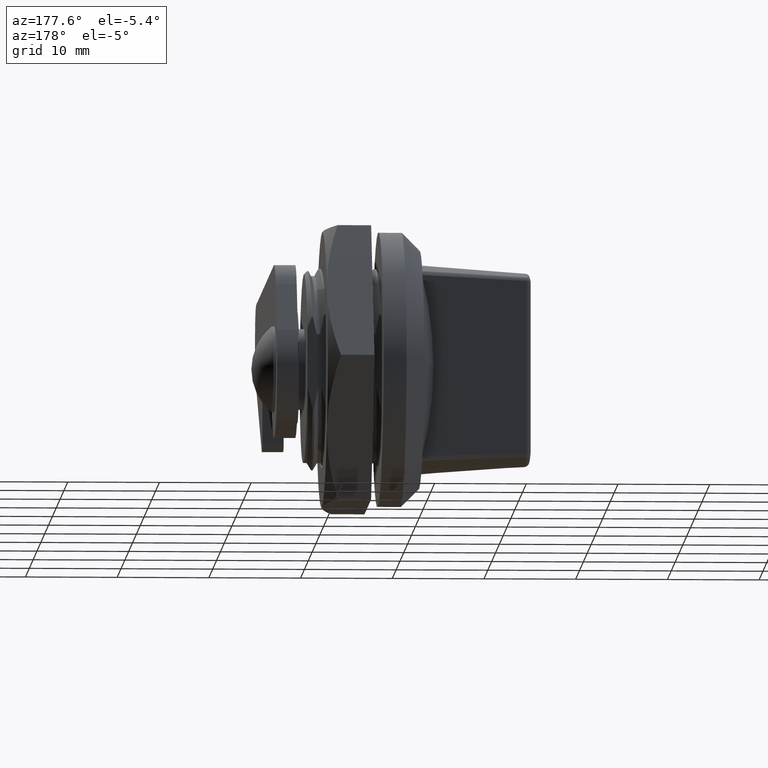
[diagram: clean part render]
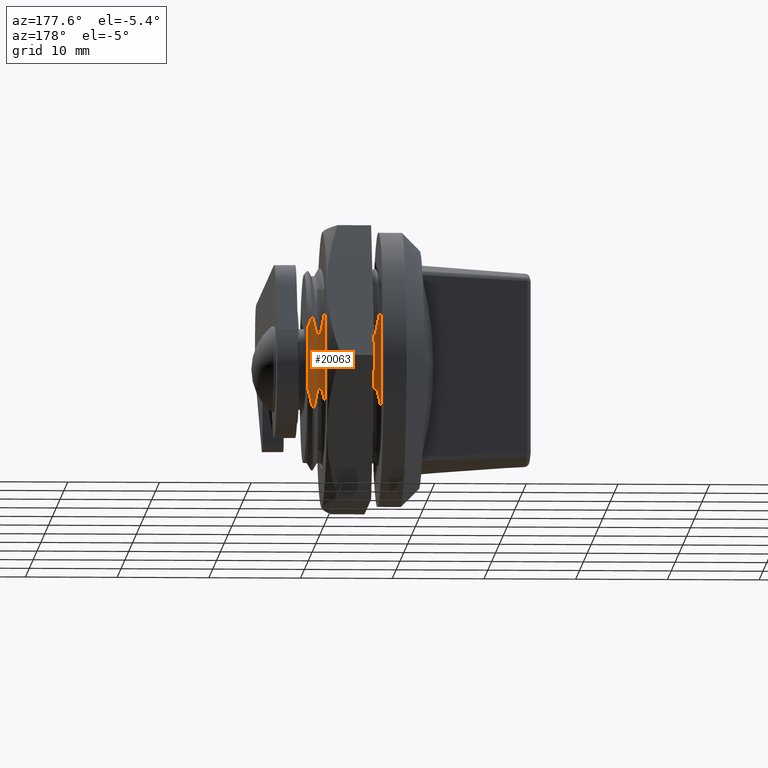
[diagram: same view with one face highlighted and labeled with its STEP entity id]
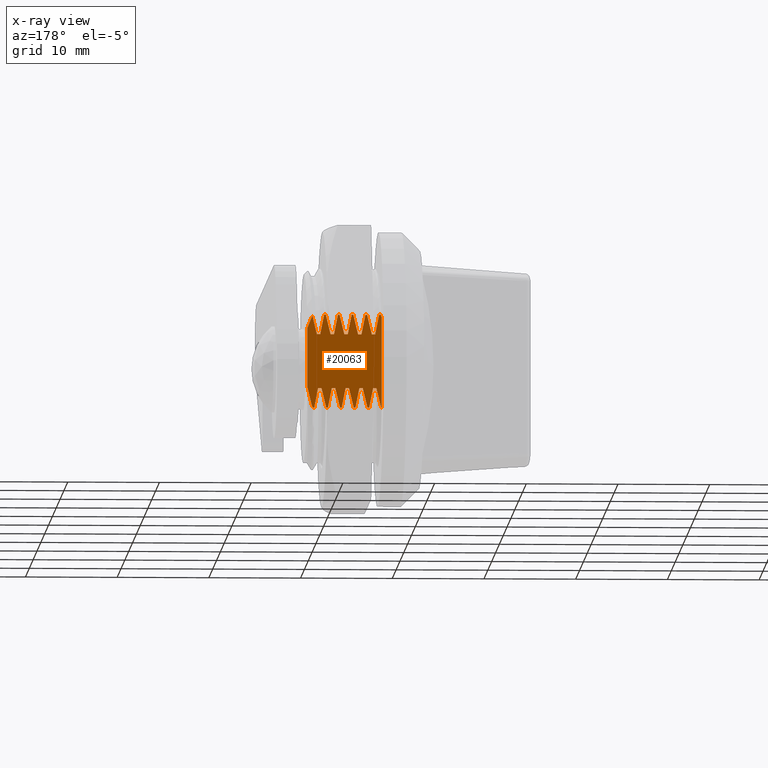
[diagram: x-ray of the same camera — body ghosted, the highlighted face saturated]
A machine part, auxiliary view. The second image highlights one B-rep face of the part: STEP entity #20063.
The next image is the same camera in x-ray: the body ghosted, the highlighted face saturated — about 0% of this face is hidden behind the body in this view.
In plain terms, the highlighted planar face has unit normal (0, 1, -0).
Its self-contained STEP definition (entity closure, byte-faithful):
#61 = EDGE_CURVE ( 'NONE', #17751, #25264, #22740, .T. ) ;
#84 = CARTESIAN_POINT ( 'NONE',  ( 7.747457611154870500, 9.750000000000000000, -4.388131041996834000 ) ) ;
#104 = EDGE_CURVE ( 'NONE', #27279, #17019, #11925, .T. ) ;
#142 = CARTESIAN_POINT ( 'NONE',  ( 1004.500000000000000, 9.749999999999888100, -5.092887196872950100 ) ) ;
#196 = B_SPLINE_CURVE_WITH_KNOTS ( 'NONE', 3,
 ( #27575, #12445, #16801, #3833 ),
 .UNSPECIFIED., .F., .F.,
 ( 4, 4 ),
 ( 1.374339532045098700E-015, 0.002199775161618605800 ),
 .UNSPECIFIED. ) ;
#243 = CARTESIAN_POINT ( 'NONE',  ( 12.59251420556091900, 9.750000000000007100, 3.598993143725120400 ) ) ;
#316 = ORIENTED_EDGE ( 'NONE', *, *, #8936, .F. ) ;
#340 = CARTESIAN_POINT ( 'NONE',  ( 9.247457611151459000, 9.750000000000000000, -4.388131041996415700 ) ) ;
#360 = EDGE_LOOP ( 'NONE', ( #11985, #9106, #17912, #11980, #19501, #3872, #20862, #6910, #1892, #23405, #22431, #23936, #3649, #22143, #4700, #5692, #4886, #25595, #2560, #25263, #11300, #7967, #27826, #26838, #5960, #13802, #4208, #316, #26705, #3518, #23555, #1164, #18157, #9923, #23167, #9886, #3871, #10373, #6713, #25176, #16117, #8779, #2201, #4956, #27903, #8607, #25937, #18700, #24171 ) ) ;
#437 = CARTESIAN_POINT ( 'NONE',  ( 9.935243690233729600, 9.750000000000000000, -2.955138575430904500 ) ) ;
#452 = VECTOR ( 'NONE', #14614, 1000.000000000000000 ) ;
#487 = EDGE_CURVE ( 'NONE', #13762, #21041, #20706, .T. ) ;
#562 = CARTESIAN_POINT ( 'NONE',  ( 7.071591603368130300, 9.750000000000000000, 2.955138575430920100 ) ) ;
#614 = CARTESIAN_POINT ( 'NONE',  ( 7.773776318950489800, 9.749999999999888100, 5.092887196872939400 ) ) ;
#639 = CARTESIAN_POINT ( 'NONE',  ( 1004.500000000000000, 9.749999999999888100, 5.092887196872939400 ) ) ;
#834 = VERTEX_POINT ( 'NONE', #20038 ) ;
#888 = LINE ( 'NONE', #3045, #11706 ) ;
#1023 = CARTESIAN_POINT ( 'NONE',  ( 9.273776318950540400, 9.749999999999888100, 5.092887196872939400 ) ) ;
#1164 = ORIENTED_EDGE ( 'NONE', *, *, #27853, .F. ) ;
#1195 = VERTEX_POINT ( 'NONE', #20387 ) ;
#1245 = LINE ( 'NONE', #7952, #12065 ) ;
#1343 = CARTESIAN_POINT ( 'NONE',  ( 1004.500000000000000, 9.749999999999888100, 5.092887196872939400 ) ) ;
#1422 = VERTEX_POINT ( 'NONE', #16320 ) ;
#1651 = CARTESIAN_POINT ( 'NONE',  ( 12.11880853623222100, 9.750000000000000000, -4.830924101067680000 ) ) ;
#1674 = VERTEX_POINT ( 'NONE', #16606 ) ;
#1788 = CARTESIAN_POINT ( 'NONE',  ( 11.57159160336812000, 9.750000000000000000, 2.955138575430949800 ) ) ;
#1840 = CARTESIAN_POINT ( 'NONE',  ( 11.57159160336812000, 9.750000000000000000, 2.955138575430949800 ) ) ;
#1892 = ORIENTED_EDGE ( 'NONE', *, *, #24857, .F. ) ;
#1941 = CARTESIAN_POINT ( 'NONE',  ( 3.065778809314075200, 9.750000000000000000, -2.955138575430900100 ) ) ;
#1942 = CARTESIAN_POINT ( 'NONE',  ( 4.544886787536820600, 9.749999999999870300, -5.092887196873009600 ) ) ;
#1992 = VERTEX_POINT ( 'NONE', #13755 ) ;
#2009 = CARTESIAN_POINT ( 'NONE',  ( 7.773776318950489800, 9.749999999999888100, 5.092887196872939400 ) ) ;
#2201 = ORIENTED_EDGE ( 'NONE', *, *, #104, .F. ) ;
#2287 = VECTOR ( 'NONE', #9181, 1000.000000000000000 ) ;
#2324 = EDGE_CURVE ( 'NONE', #19220, #14966, #3980, .T. ) ;
#2560 = ORIENTED_EDGE ( 'NONE', *, *, #10071, .F. ) ;
#2617 = B_SPLINE_CURVE_WITH_KNOTS ( 'NONE', 3,
 ( #13051, #84, #19565, #6610 ),
 .UNSPECIFIED., .F., .F.,
 ( 4, 4 ),
 ( 8.063759033315296500E-016, 0.002199775161621851100 ),
 .UNSPECIFIED. ) ;
#2629 = CARTESIAN_POINT ( 'NONE',  ( 11.85778129967785900, 9.749999999999859700, -5.092887196873020300 ) ) ;
#2664 = CARTESIAN_POINT ( 'NONE',  ( 5.092307622353009900, 9.750000000000000000, 3.674419402859443000 ) ) ;
#2693 = CARTESIAN_POINT ( 'NONE',  ( 11.43524369023371900, 9.750000000000000000, -2.955138575430849900 ) ) ;
#2818 = VECTOR ( 'NONE', #4579, 1000.000000000000000 ) ;
#2849 = EDGE_CURVE ( 'NONE', #26038, #7321, #16988, .T. ) ;
#2930 = VECTOR ( 'NONE', #26419, 1000.000000000000000 ) ;
#3019 = CARTESIAN_POINT ( 'NONE',  ( 5.435243690233729600, 9.750000000000000000, -2.955138575430839700 ) ) ;
#3044 = CARTESIAN_POINT ( 'NONE',  ( 10.77377631895050000, 9.749999999999888100, 5.092887196872939400 ) ) ;
#3045 = CARTESIAN_POINT ( 'NONE',  ( 3.065778809314075200, 9.750000000000000000, 2.955138575430900100 ) ) ;
#3091 = B_SPLINE_CURVE_WITH_KNOTS ( 'NONE', 3,
 ( #4720, #17670, #11242, #26383 ),
 .UNSPECIFIED., .F., .F.,
 ( 4, 4 ),
 ( 5.454457236286268500E-016, 0.002199775161620278500 ),
 .UNSPECIFIED. ) ;
#3113 = EDGE_CURVE ( 'NONE', #11786, #23279, #12975, .T. ) ;
#3518 = ORIENTED_EDGE ( 'NONE', *, *, #25102, .F. ) ;
#3649 = ORIENTED_EDGE ( 'NONE', *, *, #7711, .F. ) ;
#3833 = CARTESIAN_POINT ( 'NONE',  ( 5.571591603368130300, 9.750000000000000000, 2.955138575430959600 ) ) ;
#3871 = ORIENTED_EDGE ( 'NONE', *, *, #61, .F. ) ;
#3872 = ORIENTED_EDGE ( 'NONE', *, *, #22933, .T. ) ;
#3980 = B_SPLINE_CURVE_WITH_KNOTS ( 'NONE', 3,
 ( #25538, #21187, #12581, #27721 ),
 .UNSPECIFIED., .F., .F.,
 ( 4, 4 ),
 ( 2.763496712971269500E-016, 0.002179643169391172700 ),
 .UNSPECIFIED. ) ;
#4088 = DIRECTION ( 'NONE',  ( 1.000000000000000000, -0.0000000000000000000, -0.0000000000000000000 ) ) ;
#4208 = ORIENTED_EDGE ( 'NONE', *, *, #21597, .T. ) ;
#4315 = B_SPLINE_CURVE_WITH_KNOTS ( 'NONE', 3,
 ( #26150, #243, #19710, #6764 ),
 .UNSPECIFIED., .F., .F.,
 ( 4, 4 ),
 ( 0.0006088541726965527300, 0.0007387327861156577900 ),
 .UNSPECIFIED. ) ;
#4367 = CARTESIAN_POINT ( 'NONE',  ( 12.57714551780390100, 9.750000000000000000, 3.684208945773095300 ) ) ;
#4382 = CARTESIAN_POINT ( 'NONE',  ( 10.35778129967785900, 9.749999999999888100, -5.092887196873049600 ) ) ;
#4439 = EDGE_CURVE ( 'NONE', #15771, #17751, #4855, .T. ) ;
#4445 = LINE ( 'NONE', #24157, #21008 ) ;
#4476 = CARTESIAN_POINT ( 'NONE',  ( 9.044886787536821500, 9.749999999999888100, -5.092887196873049600 ) ) ;
#4543 = VERTEX_POINT ( 'NONE', #4943 ) ;
#4547 = CARTESIAN_POINT ( 'NONE',  ( 1004.500000000000000, 9.749999999999888100, -5.092887196872950100 ) ) ;
#4578 = CARTESIAN_POINT ( 'NONE',  ( 10.54488678753682000, 9.749999999999859700, -5.092887196873020300 ) ) ;
#4579 = DIRECTION ( 'NONE',  ( -1.000000000000000000, 0.0000000000000000000, 0.0000000000000000000 ) ) ;
#4677 = CARTESIAN_POINT ( 'NONE',  ( 9.422852127396721400, 9.750000000000000000, -3.675518082631396700 ) ) ;
#4700 = ORIENTED_EDGE ( 'NONE', *, *, #25473, .F. ) ;
#4720 = CARTESIAN_POINT ( 'NONE',  ( 9.086670831091550900, 9.750000000000000000, 5.092887196872919900 ) ) ;
#4742 = EDGE_CURVE ( 'NONE', #20503, #834, #27156, .T. ) ;
#4770 = CARTESIAN_POINT ( 'NONE',  ( 10.03924999627532900, 9.750000000000000000, -3.674419402859540700 ) ) ;
#4820 = EDGE_CURVE ( 'NONE', #25000, #12672, #9231, .T. ) ;
#4841 = LINE ( 'NONE', #1941, #21403 ) ;
#4855 = B_SPLINE_CURVE_WITH_KNOTS ( 'NONE', 3,
 ( #24341, #9210, #13562, #614 ),
 .UNSPECIFIED., .F., .F.,
 ( 4, 4 ),
 ( 7.996680103938911300E-018, 0.002179643169391180500 ),
 .UNSPECIFIED. ) ;
#4865 = CARTESIAN_POINT ( 'NONE',  ( 7.544886787536829500, 9.749999999999859700, -5.092887196873030000 ) ) ;
#4886 = ORIENTED_EDGE ( 'NONE', *, *, #18934, .F. ) ;
#4943 = CARTESIAN_POINT ( 'NONE',  ( 9.559966015260229700, 9.750000000000799400, -2.955138575428334600 ) ) ;
#4951 = VERTEX_POINT ( 'NONE', #13603 ) ;
#4956 = ORIENTED_EDGE ( 'NONE', *, *, #9703, .F. ) ;
#5004 = CARTESIAN_POINT ( 'NONE',  ( 9.696313928394570100, 9.750000000000000000, 2.955138575430884500 ) ) ;
#5135 = CARTESIAN_POINT ( 'NONE',  ( 10.58667083109154000, 9.750000000000000000, 5.092887196872850600 ) ) ;
#5160 = B_SPLINE_CURVE_WITH_KNOTS ( 'NONE', 3,
 ( #25512, #14642, #14739, #1788 ),
 .UNSPECIFIED., .F., .F.,
 ( 4, 4 ),
 ( 0.0001211446762091637300, 0.002199775161618641400 ),
 .UNSPECIFIED. ) ;
#5201 = DIRECTION ( 'NONE',  ( -1.000000000000000000, 0.0000000000000000000, 0.0000000000000000000 ) ) ;
#5259 = VERTEX_POINT ( 'NONE', #21205 ) ;
#5265 = CARTESIAN_POINT ( 'NONE',  ( 9.696313928394570100, 9.750000000000000000, 2.955138575430884500 ) ) ;
#5341 = CARTESIAN_POINT ( 'NONE',  ( 1004.500000000000000, 9.749999999999888100, 5.092887196872939400 ) ) ;
#5356 = CARTESIAN_POINT ( 'NONE',  ( 3.065778809314075200, 9.750000000000000000, 2.955138575430900100 ) ) ;
#5497 = CARTESIAN_POINT ( 'NONE',  ( 3.065778809314075200, 9.750000000000000000, -2.955138575430900100 ) ) ;
#5538 = VERTEX_POINT ( 'NONE', #23565 ) ;
#5539 = EDGE_CURVE ( 'NONE', #20503, #24346, #25837, .T. ) ;
#5587 = CARTESIAN_POINT ( 'NONE',  ( 5.435243690233729600, 9.750000000000000000, -2.955138575430839700 ) ) ;
#5692 = ORIENTED_EDGE ( 'NONE', *, *, #7870, .F. ) ;
#5846 = B_SPLINE_CURVE_WITH_KNOTS ( 'NONE', 3,
 ( #18637, #7853, #22966, #10034 ),
 .UNSPECIFIED., .F., .F.,
 ( 4, 4 ),
 ( 1.552579691516046800E-015, 0.002199775161621179700 ),
 .UNSPECIFIED. ) ;
#5848 = CARTESIAN_POINT ( 'NONE',  ( 8.196313928394570100, 9.750000000000000000, 2.955138575430984900 ) ) ;
#5867 = VECTOR ( 'NONE', #13587, 1000.000000000000000 ) ;
#5929 = VERTEX_POINT ( 'NONE', #13585 ) ;
#5960 = ORIENTED_EDGE ( 'NONE', *, *, #5539, .F. ) ;
#5977 = CARTESIAN_POINT ( 'NONE',  ( 4.773776318950480000, 9.749999999999888100, 5.092887196872939400 ) ) ;
#6071 = CARTESIAN_POINT ( 'NONE',  ( 12.55996601526021900, 9.750000000000749600, -2.955138575428444700 ) ) ;
#6164 = VECTOR ( 'NONE', #16476, 1000.000000000000000 ) ;
#6215 = CARTESIAN_POINT ( 'NONE',  ( 3.065778809314075200, 9.750000000000000000, -2.955138575430900100 ) ) ;
#6369 = CARTESIAN_POINT ( 'NONE',  ( 5.857781299677869300, 9.749999999999747800, -5.092887196873250300 ) ) ;
#6450 = CARTESIAN_POINT ( 'NONE',  ( 12.24477119753892600, 9.750000000000001800, 4.555540758050388400 ) ) ;
#6565 = CARTESIAN_POINT ( 'NONE',  ( 12.11880853623222100, 9.750000000000000000, -4.830924101067680000 ) ) ;
#6570 = CARTESIAN_POINT ( 'NONE',  ( 4.586670831091540300, 9.750000000000000000, 5.092887196872959900 ) ) ;
#6571 = CARTESIAN_POINT ( 'NONE',  ( 8.435243690233740200, 9.750000000000000000, -2.955138575430814800 ) ) ;
#6610 = CARTESIAN_POINT ( 'NONE',  ( 8.059966015260240400, 9.750000000000779800, -2.955138575428244900 ) ) ;
#6649 = EDGE_CURVE ( 'NONE', #1422, #24229, #9206, .T. ) ;
#6666 = CARTESIAN_POINT ( 'NONE',  ( 11.99999999995382000, 9.750000000000000000, -5.092887196873070000 ) ) ;
#6692 = LINE ( 'NONE', #6215, #23942 ) ;
#6713 = ORIENTED_EDGE ( 'NONE', *, *, #16948, .F. ) ;
#6717 = CARTESIAN_POINT ( 'NONE',  ( 10.54488678753682000, 9.749999999999859700, -5.092887196873020300 ) ) ;
#6764 = CARTESIAN_POINT ( 'NONE',  ( 12.57714551780390100, 9.750000000000000000, 3.684208945773095300 ) ) ;
#6864 = CARTESIAN_POINT ( 'NONE',  ( 11.43524369023371900, 9.750000000000000000, -2.955138575430849900 ) ) ;
#6910 = ORIENTED_EDGE ( 'NONE', *, *, #10912, .F. ) ;
#6914 = VECTOR ( 'NONE', #14412, 1000.000000000000000 ) ;
#6965 = VERTEX_POINT ( 'NONE', #5977 ) ;
#6989 = CARTESIAN_POINT ( 'NONE',  ( 5.196313928394560300, 9.750000000000000000, 2.955138575430724700 ) ) ;
#7038 = CARTESIAN_POINT ( 'NONE',  ( 6.696313928394570100, 9.750000000000000000, 2.955138575430920100 ) ) ;
#7126 = CARTESIAN_POINT ( 'NONE',  ( 4.499999999999884500, 9.750000000000000000, -11.39901311517800100 ) ) ;
#7321 = VERTEX_POINT ( 'NONE', #6369 ) ;
#7328 = LINE ( 'NONE', #15709, #2287 ) ;
#7330 = VERTEX_POINT ( 'NONE', #21501 ) ;
#7507 = AXIS2_PLACEMENT_3D ( 'NONE', #16590, #12324, #27452 ) ;
#7539 = EDGE_CURVE ( 'NONE', #1674, #1992, #21671, .T. ) ;
#7570 = LINE ( 'NONE', #12231, #6914 ) ;
#7657 = VERTEX_POINT ( 'NONE', #4578 ) ;
#7664 = VECTOR ( 'NONE', #18463, 1000.000000000000000 ) ;
#7711 = EDGE_CURVE ( 'NONE', #22895, #4543, #16631, .T. ) ;
#7824 = EDGE_CURVE ( 'NONE', #7657, #20798, #4445, .T. ) ;
#7853 = CARTESIAN_POINT ( 'NONE',  ( 7.384100007481865900, 9.750000000000000000, 4.388131041997386500 ) ) ;
#7870 = EDGE_CURVE ( 'NONE', #12072, #4951, #26119, .T. ) ;
#7952 = CARTESIAN_POINT ( 'NONE',  ( 1004.500000000000000, 9.749999999999888100, -5.092887196872950100 ) ) ;
#7967 = ORIENTED_EDGE ( 'NONE', *, *, #18009, .T. ) ;
#8111 = B_SPLINE_CURVE_WITH_KNOTS ( 'NONE', 3,
 ( #6717, #17486, #24018, #11067 ),
 .UNSPECIFIED., .F., .F.,
 ( 4, 4 ),
 ( 1.086248948939843800E-015, 0.002199775161623259200 ),
 .UNSPECIFIED. ) ;
#8137 = DIRECTION ( 'NONE',  ( -1.000000000000000000, 0.0000000000000000000, 0.0000000000000000000 ) ) ;
#8339 = CARTESIAN_POINT ( 'NONE',  ( 4.500000000007279500, 9.750000000000000000, 4.784718670937349900 ) ) ;
#8448 = CARTESIAN_POINT ( 'NONE',  ( 4.922852127396732100, 9.750000000000000000, -3.675518082631341200 ) ) ;
#8556 = LINE ( 'NONE', #142, #2818 ) ;
#8607 = ORIENTED_EDGE ( 'NONE', *, *, #2324, .F. ) ;
#8758 = CARTESIAN_POINT ( 'NONE',  ( 8.683393538872472600, 9.750000000000000000, -4.387379690872654300 ) ) ;
#8779 = ORIENTED_EDGE ( 'NONE', *, *, #18563, .F. ) ;
#8868 = VECTOR ( 'NONE', #13557, 1000.000000000000000 ) ;
#8936 = EDGE_CURVE ( 'NONE', #21101, #1195, #17518, .T. ) ;
#9106 = ORIENTED_EDGE ( 'NONE', *, *, #20018, .T. ) ;
#9164 = CARTESIAN_POINT ( 'NONE',  ( 4.948164079755763100, 9.750000000000000000, 4.387379690873260100 ) ) ;
#9178 = EDGE_CURVE ( 'NONE', #17372, #5929, #27551, .T. ) ;
#9181 = DIRECTION ( 'NONE',  ( -1.000000000000000000, 0.0000000000000000000, 0.0000000000000000000 ) ) ;
#9206 = LINE ( 'NONE', #16396, #21363 ) ;
#9210 = CARTESIAN_POINT ( 'NONE',  ( 8.092307622352995700, 9.750000000000000000, 3.674419402859526500 ) ) ;
#9231 = LINE ( 'NONE', #17767, #15667 ) ;
#9445 = CARTESIAN_POINT ( 'NONE',  ( 5.539249996275332300, 9.750000000000000000, -3.674419402859585600 ) ) ;
#9466 = VERTEX_POINT ( 'NONE', #2693 ) ;
#9497 = CARTESIAN_POINT ( 'NONE',  ( 8.571591603368141000, 9.750000000000000000, 2.955138575430984900 ) ) ;
#9642 = CARTESIAN_POINT ( 'NONE',  ( 7.183393538872596000, 9.750000000000000000, -4.387379690873423500 ) ) ;
#9703 = EDGE_CURVE ( 'NONE', #14530, #27279, #10394, .T. ) ;
#9757 = VERTEX_POINT ( 'NONE', #9497 ) ;
#9886 = ORIENTED_EDGE ( 'NONE', *, *, #15639, .F. ) ;
#9923 = ORIENTED_EDGE ( 'NONE', *, *, #15802, .F. ) ;
#9959 = LINE ( 'NONE', #24485, #20772 ) ;
#10034 = CARTESIAN_POINT ( 'NONE',  ( 7.071591603368130300, 9.750000000000000000, 2.955138575430920100 ) ) ;
#10071 = EDGE_CURVE ( 'NONE', #26725, #21041, #23366, .T. ) ;
#10147 = PLANE ( 'NONE',  #7507 ) ;
#10157 = CARTESIAN_POINT ( 'NONE',  ( 3.065778809314075200, 9.750000000000000000, 2.955138575430900100 ) ) ;
#10187 = CARTESIAN_POINT ( 'NONE',  ( 9.086670831091550900, 9.750000000000000000, 5.092887196872919900 ) ) ;
#10208 = CARTESIAN_POINT ( 'NONE',  ( 6.592307622353003700, 9.750000000000000000, 3.674419402859502100 ) ) ;
#10251 = VECTOR ( 'NONE', #22246, 1000.000000000000000 ) ;
#10373 = ORIENTED_EDGE ( 'NONE', *, *, #4439, .F. ) ;
#10394 = B_SPLINE_CURVE_WITH_KNOTS ( 'NONE', 3,
 ( #5135, #18098, #24632, #11668 ),
 .UNSPECIFIED., .F., .F.,
 ( 4, 4 ),
 ( 3.257448574254432800E-016, 0.002199775161619544300 ),
 .UNSPECIFIED. ) ;
#10574 = DIRECTION ( 'NONE',  ( 1.000000000000000000, -0.0000000000000000000, -0.0000000000000000000 ) ) ;
#10625 = CARTESIAN_POINT ( 'NONE',  ( 4.747457611147774900, 9.750000000000000000, -4.388131041996560500 ) ) ;
#10912 = EDGE_CURVE ( 'NONE', #21871, #9466, #6692, .T. ) ;
#10952 = LINE ( 'NONE', #7126, #10251 ) ;
#11067 = CARTESIAN_POINT ( 'NONE',  ( 11.05996601526021900, 9.750000000000730100, -2.955138575428514900 ) ) ;
#11157 = CARTESIAN_POINT ( 'NONE',  ( 12.55996601526021900, 9.750000000000749600, -2.955138575428444700 ) ) ;
#11242 = CARTESIAN_POINT ( 'NONE',  ( 8.708705491231443200, 9.750000000000000000, 3.675518082630491200 ) ) ;
#11300 = ORIENTED_EDGE ( 'NONE', *, *, #19492, .F. ) ;
#11305 = CARTESIAN_POINT ( 'NONE',  ( 10.18339353887263400, 9.750000000000000000, -4.387379690873526500 ) ) ;
#11424 = B_SPLINE_CURVE_WITH_KNOTS ( 'NONE', 3,
 ( #6864, #19820, #15569, #2629 ),
 .UNSPECIFIED., .F., .F.,
 ( 4, 4 ),
 ( 1.574231686337168700E-016, 0.002179643169391252100 ),
 .UNSPECIFIED. ) ;
#11611 = CARTESIAN_POINT ( 'NONE',  ( 5.683393538872636900, 9.750000000000000000, -4.387379690873483000 ) ) ;
#11642 = LINE ( 'NONE', #639, #5867 ) ;
#11668 = CARTESIAN_POINT ( 'NONE',  ( 10.07159160336812100, 9.750000000000000000, 2.955138575430884500 ) ) ;
#11678 = CARTESIAN_POINT ( 'NONE',  ( 6.247457611157967600, 9.750000000000000000, -4.388131041998274600 ) ) ;
#11706 = VECTOR ( 'NONE', #5201, 1000.000000000000000 ) ;
#11733 = CARTESIAN_POINT ( 'NONE',  ( 10.07159160336812100, 9.750000000000000000, 2.955138575430884500 ) ) ;
#11786 = VERTEX_POINT ( 'NONE', #562 ) ;
#11925 = LINE ( 'NONE', #14523, #452 ) ;
#11980 = ORIENTED_EDGE ( 'NONE', *, *, #20226, .F. ) ;
#11985 = ORIENTED_EDGE ( 'NONE', *, *, #22902, .F. ) ;
#12065 = VECTOR ( 'NONE', #8137, 1000.000000000000000 ) ;
#12072 = VERTEX_POINT ( 'NONE', #13961 ) ;
#12207 = EDGE_CURVE ( 'NONE', #6965, #21101, #17832, .T. ) ;
#12231 = CARTESIAN_POINT ( 'NONE',  ( 12.59999999999193900, 9.750000000000000000, -11.39901311517800100 ) ) ;
#12287 = VERTEX_POINT ( 'NONE', #27293 ) ;
#12324 = DIRECTION ( 'NONE',  ( 0.0000000000000000000, 1.000000000000000000, -1.224646799147352000E-016 ) ) ;
#12335 = DIRECTION ( 'NONE',  ( -1.000000000000000000, 0.0000000000000000000, 0.0000000000000000000 ) ) ;
#12391 = CARTESIAN_POINT ( 'NONE',  ( 6.273776318950539600, 9.749999999999888100, 5.092887196872939400 ) ) ;
#12434 = EDGE_CURVE ( 'NONE', #14703, #7330, #22872, .T. ) ;
#12445 = CARTESIAN_POINT ( 'NONE',  ( 5.884100007471368500, 9.750000000000000000, 4.388131041998022400 ) ) ;
#12515 = CARTESIAN_POINT ( 'NONE',  ( 12.29025632290567000, 9.749999999999978700, -4.211692046623024800 ) ) ;
#12581 = CARTESIAN_POINT ( 'NONE',  ( 10.94816407975576700, 9.750000000000000000, 4.387379690873267200 ) ) ;
#12672 = VERTEX_POINT ( 'NONE', #25479 ) ;
#12801 = CARTESIAN_POINT ( 'NONE',  ( 5.059966015260229700, 9.750000000000740700, -2.955138575428504700 ) ) ;
#12975 = LINE ( 'NONE', #5356, #23794 ) ;
#12981 = CARTESIAN_POINT ( 'NONE',  ( 12.05345356274190000, 9.750000000000000000, 4.976382109736510600 ) ) ;
#13004 = CARTESIAN_POINT ( 'NONE',  ( 12.07986118796791800, 9.750000000000000000, -4.918649253560517700 ) ) ;
#13051 = CARTESIAN_POINT ( 'NONE',  ( 7.544886787536829500, 9.749999999999859700, -5.092887196873030000 ) ) ;
#13427 = DIRECTION ( 'NONE',  ( -1.000000000000000000, 0.0000000000000000000, 0.0000000000000000000 ) ) ;
#13557 = DIRECTION ( 'NONE',  ( 1.000000000000000000, -0.0000000000000000000, -0.0000000000000000000 ) ) ;
#13562 = CARTESIAN_POINT ( 'NONE',  ( 7.948164079755716900, 9.750000000000000000, 4.387379690873500800 ) ) ;
#13585 = CARTESIAN_POINT ( 'NONE',  ( 12.57714551780390100, 9.750000000000000000, 3.684208945773095300 ) ) ;
#13587 = DIRECTION ( 'NONE',  ( -1.000000000000000000, 0.0000000000000000000, 0.0000000000000000000 ) ) ;
#13603 = CARTESIAN_POINT ( 'NONE',  ( 8.435243690233740200, 9.750000000000000000, -2.955138575430814800 ) ) ;
#13689 = EDGE_CURVE ( 'NONE', #5259, #20798, #20101, .T. ) ;
#13752 = LINE ( 'NONE', #17897, #2930 ) ;
#13755 = CARTESIAN_POINT ( 'NONE',  ( 11.99999999995382000, 9.750000000000000000, -5.092887196873070000 ) ) ;
#13762 = VERTEX_POINT ( 'NONE', #4865 ) ;
#13802 = ORIENTED_EDGE ( 'NONE', *, *, #4742, .T. ) ;
#13834 = CARTESIAN_POINT ( 'NONE',  ( 6.559966015260170200, 9.750000000000000000, -2.955138575431004900 ) ) ;
#13961 = CARTESIAN_POINT ( 'NONE',  ( 8.059966015260240400, 9.750000000000779800, -2.955138575428244900 ) ) ;
#13978 = CARTESIAN_POINT ( 'NONE',  ( 9.448164079755942500, 9.750000000000000000, 4.387379690872339900 ) ) ;
#14230 = DIRECTION ( 'NONE',  ( -1.000000000000000000, 0.0000000000000000000, 0.0000000000000000000 ) ) ;
#14412 = DIRECTION ( 'NONE',  ( -0.0000000000000000000, -1.224646799147352000E-016, -1.000000000000000000 ) ) ;
#14523 = CARTESIAN_POINT ( 'NONE',  ( 3.065778809314075200, 9.750000000000000000, 2.955138575430900100 ) ) ;
#14530 = VERTEX_POINT ( 'NONE', #15994 ) ;
#14614 = DIRECTION ( 'NONE',  ( -1.000000000000000000, 0.0000000000000000000, 0.0000000000000000000 ) ) ;
#14642 = CARTESIAN_POINT ( 'NONE',  ( 11.86491104311030400, 9.750000000000071100, 4.309641615806769200 ) ) ;
#14703 = VERTEX_POINT ( 'NONE', #16364 ) ;
#14739 = CARTESIAN_POINT ( 'NONE',  ( 11.70115443881528200, 9.750000000000000000, 3.635845781719466300 ) ) ;
#14757 = CARTESIAN_POINT ( 'NONE',  ( 12.05345356274190000, 9.750000000000000000, 4.976382109736510600 ) ) ;
#14966 = VERTEX_POINT ( 'NONE', #3044 ) ;
#15341 = DIRECTION ( 'NONE',  ( -1.000000000000000000, 0.0000000000000000000, 0.0000000000000000000 ) ) ;
#15470 = CARTESIAN_POINT ( 'NONE',  ( 9.044886787536821500, 9.749999999999888100, -5.092887196873049600 ) ) ;
#15569 = CARTESIAN_POINT ( 'NONE',  ( 11.68339353887264100, 9.750000000000000000, -4.387379690873553200 ) ) ;
#15602 = B_SPLINE_CURVE_WITH_KNOTS ( 'NONE', 3,
 ( #18199, #11678, #22447, #20369 ),
 .UNSPECIFIED., .F., .F.,
 ( 4, 4 ),
 ( 1.893692232571931300E-015, 0.002199775161618300900 ),
 .UNSPECIFIED. ) ;
#15639 = EDGE_CURVE ( 'NONE', #25264, #11786, #5846, .T. ) ;
#15667 = VECTOR ( 'NONE', #26469, 1000.000000000000000 ) ;
#15709 = CARTESIAN_POINT ( 'NONE',  ( 3.065778809314075200, 9.750000000000000000, 2.955138575430900100 ) ) ;
#15771 = VERTEX_POINT ( 'NONE', #5848 ) ;
#15802 = EDGE_CURVE ( 'NONE', #23279, #12287, #23926, .T. ) ;
#15878 = EDGE_CURVE ( 'NONE', #22895, #5538, #1245, .T. ) ;
#15994 = CARTESIAN_POINT ( 'NONE',  ( 10.58667083109154000, 9.750000000000000000, 5.092887196872850600 ) ) ;
#16090 = B_SPLINE_CURVE_WITH_KNOTS ( 'NONE', 3,
 ( #6571, #21701, #8758, #23879 ),
 .UNSPECIFIED., .F., .F.,
 ( 4, 4 ),
 ( 1.916457301704689900E-016, 0.002179643169391262500 ),
 .UNSPECIFIED. ) ;
#16117 = ORIENTED_EDGE ( 'NONE', *, *, #6649, .F. ) ;
#16320 = CARTESIAN_POINT ( 'NONE',  ( 9.273776318950540400, 9.749999999999888100, 5.092887196872939400 ) ) ;
#16364 = CARTESIAN_POINT ( 'NONE',  ( 5.571591603368130300, 9.750000000000000000, 2.955138575430959600 ) ) ;
#16396 = CARTESIAN_POINT ( 'NONE',  ( 1004.500000000000000, 9.749999999999888100, 5.092887196872939400 ) ) ;
#16407 = VERTEX_POINT ( 'NONE', #21571 ) ;
#16476 = DIRECTION ( 'NONE',  ( -1.000000000000000000, 0.0000000000000000000, 0.0000000000000000000 ) ) ;
#16590 = CARTESIAN_POINT ( 'NONE',  ( 201004.5000000000000, 9.750000000000000000, -11.39901311517800100 ) ) ;
#16606 = CARTESIAN_POINT ( 'NONE',  ( 12.11880853623222100, 9.750000000000000000, -4.830924101067680000 ) ) ;
#16631 = B_SPLINE_CURVE_WITH_KNOTS ( 'NONE', 3,
 ( #15470, #340, #4677, #19809 ),
 .UNSPECIFIED., .F., .F.,
 ( 4, 4 ),
 ( 1.144950348284594800E-016, 0.002199775161622600500 ),
 .UNSPECIFIED. ) ;
#16801 = CARTESIAN_POINT ( 'NONE',  ( 5.708705491231267400, 9.750000000000000000, 3.675518082629580400 ) ) ;
#16850 = CARTESIAN_POINT ( 'NONE',  ( 1004.500000000000000, 9.749999999999888100, -5.092887196872950100 ) ) ;
#16856 = CARTESIAN_POINT ( 'NONE',  ( 4.586670831091540300, 9.750000000000000000, 5.092887196872959900 ) ) ;
#16948 = EDGE_CURVE ( 'NONE', #9757, #15771, #7328, .T. ) ;
#16988 = B_SPLINE_CURVE_WITH_KNOTS ( 'NONE', 3,
 ( #3019, #9445, #11611, #18135 ),
 .UNSPECIFIED., .F., .F.,
 ( 4, 4 ),
 ( 1.675473713649639600E-016, 0.002179643169391478500 ),
 .UNSPECIFIED. ) ;
#17019 = VERTEX_POINT ( 'NONE', #5004 ) ;
#17324 = CARTESIAN_POINT ( 'NONE',  ( 12.42104872358456500, 9.750000000000001800, 4.125816410287034900 ) ) ;
#17372 = VERTEX_POINT ( 'NONE', #14757 ) ;
#17486 = CARTESIAN_POINT ( 'NONE',  ( 10.74745761114788500, 9.750000000000000000, -4.388131041996558700 ) ) ;
#17518 = B_SPLINE_CURVE_WITH_KNOTS ( 'NONE', 3,
 ( #16856, #19112, #21286, #8339 ),
 .UNSPECIFIED., .F., .F.,
 ( 4, 4 ),
 ( 4.684684903261516600E-016, 0.0003201244653847361500 ),
 .UNSPECIFIED. ) ;
#17670 = CARTESIAN_POINT ( 'NONE',  ( 8.884100007478323800, 9.750000000000000000, 4.388131041997308300 ) ) ;
#17675 = CARTESIAN_POINT ( 'NONE',  ( 1004.500000000000000, 9.749999999999888100, -5.092887196872950100 ) ) ;
#17751 = VERTEX_POINT ( 'NONE', #2009 ) ;
#17767 = CARTESIAN_POINT ( 'NONE',  ( 3.065778809314075200, 9.750000000000000000, -2.955138575430900100 ) ) ;
#17832 = LINE ( 'NONE', #5341, #23564 ) ;
#17844 = CARTESIAN_POINT ( 'NONE',  ( 11.19631392839455900, 9.750000000000000000, 2.955138575430714900 ) ) ;
#17897 = CARTESIAN_POINT ( 'NONE',  ( 1004.500000000000000, 9.749999999999888100, 5.092887196872939400 ) ) ;
#17904 = CARTESIAN_POINT ( 'NONE',  ( 3.065778809314075200, 9.750000000000000000, -2.955138575430900100 ) ) ;
#17912 = ORIENTED_EDGE ( 'NONE', *, *, #4820, .F. ) ;
#18009 = EDGE_CURVE ( 'NONE', #24816, #7321, #25582, .T. ) ;
#18098 = CARTESIAN_POINT ( 'NONE',  ( 10.38410000747483900, 9.750000000000000000, 4.388131041997430000 ) ) ;
#18135 = CARTESIAN_POINT ( 'NONE',  ( 5.857781299677869300, 9.749999999999747800, -5.092887196873250300 ) ) ;
#18157 = ORIENTED_EDGE ( 'NONE', *, *, #27018, .F. ) ;
#18199 = CARTESIAN_POINT ( 'NONE',  ( 6.044886787536819700, 9.749999999999779700, -5.092887196873180100 ) ) ;
#18225 = EDGE_CURVE ( 'NONE', #24346, #26038, #9959, .T. ) ;
#18227 = CARTESIAN_POINT ( 'NONE',  ( 9.592307622352995700, 9.750000000000000000, 3.674419402859489200 ) ) ;
#18463 = DIRECTION ( 'NONE',  ( 1.000000000000000000, -0.0000000000000000000, -0.0000000000000000000 ) ) ;
#18481 = LINE ( 'NONE', #5497, #7664 ) ;
#18563 = EDGE_CURVE ( 'NONE', #17019, #1422, #27714, .T. ) ;
#18637 = CARTESIAN_POINT ( 'NONE',  ( 7.586670831091550000, 9.750000000000000000, 5.092887196872850600 ) ) ;
#18700 = ORIENTED_EDGE ( 'NONE', *, *, #24363, .F. ) ;
#18934 = EDGE_CURVE ( 'NONE', #13762, #12072, #2617, .T. ) ;
#19010 = DIRECTION ( 'NONE',  ( -1.000000000000000000, 0.0000000000000000000, 0.0000000000000000000 ) ) ;
#19038 = CARTESIAN_POINT ( 'NONE',  ( 12.43981797792918300, 9.750000000000000000, -3.586381590068409100 ) ) ;
#19112 = CARTESIAN_POINT ( 'NONE',  ( 4.557192835167887400, 9.750000000000000000, 4.990331465061892400 ) ) ;
#19150 = VECTOR ( 'NONE', #15341, 1000.000000000000000 ) ;
#19220 = VERTEX_POINT ( 'NONE', #17844 ) ;
#19307 = EDGE_CURVE ( 'NONE', #14966, #14530, #11642, .T. ) ;
#19434 = VERTEX_POINT ( 'NONE', #24455 ) ;
#19492 = EDGE_CURVE ( 'NONE', #24816, #21904, #15602, .T. ) ;
#19501 = ORIENTED_EDGE ( 'NONE', *, *, #7539, .T. ) ;
#19565 = CARTESIAN_POINT ( 'NONE',  ( 7.922852127396814700, 9.750000000000000000, -3.675518082630878900 ) ) ;
#19617 = CARTESIAN_POINT ( 'NONE',  ( 12.04024534779524600, 9.750000000000000000, -5.005962274104410500 ) ) ;
#19661 = CARTESIAN_POINT ( 'NONE',  ( 6.044886787536819700, 9.749999999999779700, -5.092887196873180100 ) ) ;
#19710 = CARTESIAN_POINT ( 'NONE',  ( 12.58489540601243400, 9.750000000000016000, 3.641612151236356200 ) ) ;
#19809 = CARTESIAN_POINT ( 'NONE',  ( 9.559966015260229700, 9.750000000000799400, -2.955138575428334600 ) ) ;
#19820 = CARTESIAN_POINT ( 'NONE',  ( 11.53924999627531600, 9.750000000000000000, -3.674419402859514100 ) ) ;
#20018 = EDGE_CURVE ( 'NONE', #20474, #12672, #7570, .T. ) ;
#20038 = CARTESIAN_POINT ( 'NONE',  ( 4.499999999999840100, 9.749999999999888100, -5.092887196872950100 ) ) ;
#20060 = VECTOR ( 'NONE', #19010, 1000.000000000000000 ) ;
#20063 = ADVANCED_FACE ( 'NONE', ( #23453 ), #10147, .T. ) ;
#20101 = B_SPLINE_CURVE_WITH_KNOTS ( 'NONE', 3,
 ( #437, #4770, #11305, #26436 ),
 .UNSPECIFIED., .F., .F.,
 ( 4, 4 ),
 ( 1.033808233555732500E-016, 0.002179643169391280700 ),
 .UNSPECIFIED. ) ;
#20226 = EDGE_CURVE ( 'NONE', #1674, #25000, #23536, .T. ) ;
#20369 = CARTESIAN_POINT ( 'NONE',  ( 6.559966015260170200, 9.750000000000000000, -2.955138575431004900 ) ) ;
#20387 = CARTESIAN_POINT ( 'NONE',  ( 4.500000000007279500, 9.750000000000000000, 4.784718670937349900 ) ) ;
#20418 = CARTESIAN_POINT ( 'NONE',  ( 7.039249996275353600, 9.750000000000000000, -3.674419402859613500 ) ) ;
#20419 = VERTEX_POINT ( 'NONE', #1840 ) ;
#20474 = VERTEX_POINT ( 'NONE', #21305 ) ;
#20503 = VERTEX_POINT ( 'NONE', #1942 ) ;
#20706 = LINE ( 'NONE', #16850, #20060 ) ;
#20772 = VECTOR ( 'NONE', #26669, 1000.000000000000000 ) ;
#20798 = VERTEX_POINT ( 'NONE', #4382 ) ;
#20862 = ORIENTED_EDGE ( 'NONE', *, *, #22126, .F. ) ;
#21008 = VECTOR ( 'NONE', #26342, 1000.000000000000000 ) ;
#21041 = VERTEX_POINT ( 'NONE', #21608 ) ;
#21060 = CARTESIAN_POINT ( 'NONE',  ( 5.059966015260229700, 9.750000000000740700, -2.955138575428504700 ) ) ;
#21101 = VERTEX_POINT ( 'NONE', #6570 ) ;
#21187 = CARTESIAN_POINT ( 'NONE',  ( 11.09230762235298900, 9.750000000000000000, 3.674419402859436400 ) ) ;
#21205 = CARTESIAN_POINT ( 'NONE',  ( 9.935243690233729600, 9.750000000000000000, -2.955138575430904500 ) ) ;
#21286 = CARTESIAN_POINT ( 'NONE',  ( 4.528291479721090700, 9.750000000000000000, 4.887608041362438100 ) ) ;
#21305 = CARTESIAN_POINT ( 'NONE',  ( 12.59999999999982000, 9.750000000000000000, 3.556351598496865200 ) ) ;
#21363 = VECTOR ( 'NONE', #14230, 1000.000000000000000 ) ;
#21390 = CARTESIAN_POINT ( 'NONE',  ( 4.544886787536820600, 9.749999999999870300, -5.092887196873009600 ) ) ;
#21393 = VECTOR ( 'NONE', #13427, 1000.000000000000000 ) ;
#21403 = VECTOR ( 'NONE', #4088, 1000.000000000000000 ) ;
#21501 = CARTESIAN_POINT ( 'NONE',  ( 5.196313928394560300, 9.750000000000000000, 2.955138575430724700 ) ) ;
#21571 = CARTESIAN_POINT ( 'NONE',  ( 6.086670831091540300, 9.750000000000000000, 5.092887196872930600 ) ) ;
#21597 = EDGE_CURVE ( 'NONE', #834, #1195, #10952, .T. ) ;
#21608 = CARTESIAN_POINT ( 'NONE',  ( 7.357781299677869300, 9.749999999999779700, -5.092887196873180100 ) ) ;
#21671 = B_SPLINE_CURVE_WITH_KNOTS ( 'NONE', 3,
 ( #6565, #13004, #19617, #6666 ),
 .UNSPECIFIED., .F., .F.,
 ( 4, 4 ),
 ( 0.01745351218101023500, 0.01773703904020377400 ),
 .UNSPECIFIED. ) ;
#21701 = CARTESIAN_POINT ( 'NONE',  ( 8.539249996275337700, 9.750000000000000000, -3.674419402859505200 ) ) ;
#21871 = VERTEX_POINT ( 'NONE', #24617 ) ;
#21904 = VERTEX_POINT ( 'NONE', #13834 ) ;
#22126 = EDGE_CURVE ( 'NONE', #9466, #19434, #11424, .T. ) ;
#22143 = ORIENTED_EDGE ( 'NONE', *, *, #15878, .T. ) ;
#22188 = CARTESIAN_POINT ( 'NONE',  ( 7.586670831091550000, 9.750000000000000000, 5.092887196872850600 ) ) ;
#22246 = DIRECTION ( 'NONE',  ( 0.0000000000000000000, 1.224646799147352000E-016, 1.000000000000000000 ) ) ;
#22431 = ORIENTED_EDGE ( 'NONE', *, *, #13689, .F. ) ;
#22447 = CARTESIAN_POINT ( 'NONE',  ( 6.422852127397111300, 9.750000000000000000, -3.675518082629314300 ) ) ;
#22562 = EDGE_CURVE ( 'NONE', #21904, #26725, #4841, .T. ) ;
#22585 = CARTESIAN_POINT ( 'NONE',  ( 6.935243690233729600, 9.750000000000000000, -2.955138575431004900 ) ) ;
#22729 = DIRECTION ( 'NONE',  ( -1.000000000000000000, 0.0000000000000000000, 0.0000000000000000000 ) ) ;
#22740 = LINE ( 'NONE', #1343, #6164 ) ;
#22872 = LINE ( 'NONE', #10157, #27983 ) ;
#22895 = VERTEX_POINT ( 'NONE', #4476 ) ;
#22902 = EDGE_CURVE ( 'NONE', #20474, #5929, #4315, .T. ) ;
#22933 = EDGE_CURVE ( 'NONE', #1992, #19434, #8556, .T. ) ;
#22966 = CARTESIAN_POINT ( 'NONE',  ( 7.208705491231440600, 9.750000000000000000, 3.675518082630502700 ) ) ;
#23152 = CARTESIAN_POINT ( 'NONE',  ( 6.696313928394570100, 9.750000000000000000, 2.955138575430920100 ) ) ;
#23167 = ORIENTED_EDGE ( 'NONE', *, *, #3113, .F. ) ;
#23279 = VERTEX_POINT ( 'NONE', #7038 ) ;
#23366 = B_SPLINE_CURVE_WITH_KNOTS ( 'NONE', 3,
 ( #22585, #20418, #9642, #24772 ),
 .UNSPECIFIED., .F., .F.,
 ( 4, 4 ),
 ( 6.562782414047308400E-018, 0.002179643169391405600 ),
 .UNSPECIFIED. ) ;
#23405 = ORIENTED_EDGE ( 'NONE', *, *, #7824, .T. ) ;
#23453 = FACE_OUTER_BOUND ( 'NONE', #360, .T. ) ;
#23536 = B_SPLINE_CURVE_WITH_KNOTS ( 'NONE', 3,
 ( #1651, #12515, #19038, #6071 ),
 .UNSPECIFIED., .F., .F.,
 ( 4, 4 ),
 ( 0.0002721902002665665800, 0.002199775161620789800 ),
 .UNSPECIFIED. ) ;
#23555 = ORIENTED_EDGE ( 'NONE', *, *, #12434, .F. ) ;
#23564 = VECTOR ( 'NONE', #22729, 1000.000000000000000 ) ;
#23565 = CARTESIAN_POINT ( 'NONE',  ( 8.857781299677880000, 9.749999999999859700, -5.092887196873030000 ) ) ;
#23794 = VECTOR ( 'NONE', #26928, 1000.000000000000000 ) ;
#23863 = CARTESIAN_POINT ( 'NONE',  ( 6.935243690233729600, 9.750000000000000000, -2.955138575431004900 ) ) ;
#23879 = CARTESIAN_POINT ( 'NONE',  ( 8.857781299677880000, 9.749999999999859700, -5.092887196873030000 ) ) ;
#23926 = B_SPLINE_CURVE_WITH_KNOTS ( 'NONE', 3,
 ( #23152, #10208, #25343, #12391 ),
 .UNSPECIFIED., .F., .F.,
 ( 4, 4 ),
 ( 7.215281963251157200E-017, 0.002179643169391168000 ),
 .UNSPECIFIED. ) ;
#23936 = ORIENTED_EDGE ( 'NONE', *, *, #26214, .F. ) ;
#23942 = VECTOR ( 'NONE', #10574, 1000.000000000000000 ) ;
#24018 = CARTESIAN_POINT ( 'NONE',  ( 10.92285212739672000, 9.750000000000000000, -3.675518082631338900 ) ) ;
#24157 = CARTESIAN_POINT ( 'NONE',  ( 1004.500000000000000, 9.749999999999888100, -5.092887196872950100 ) ) ;
#24171 = ORIENTED_EDGE ( 'NONE', *, *, #9178, .T. ) ;
#24229 = VERTEX_POINT ( 'NONE', #10187 ) ;
#24292 = CARTESIAN_POINT ( 'NONE',  ( 4.773776318950480000, 9.749999999999888100, 5.092887196872939400 ) ) ;
#24341 = CARTESIAN_POINT ( 'NONE',  ( 8.196313928394570100, 9.750000000000000000, 2.955138575430984900 ) ) ;
#24346 = VERTEX_POINT ( 'NONE', #21060 ) ;
#24363 = EDGE_CURVE ( 'NONE', #17372, #20419, #5160, .T. ) ;
#24455 = CARTESIAN_POINT ( 'NONE',  ( 11.85778129967785900, 9.749999999999859700, -5.092887196873020300 ) ) ;
#24485 = CARTESIAN_POINT ( 'NONE',  ( 3.065778809314075200, 9.750000000000000000, -2.955138575430900100 ) ) ;
#24617 = CARTESIAN_POINT ( 'NONE',  ( 11.05996601526021900, 9.750000000000730100, -2.955138575428514900 ) ) ;
#24632 = CARTESIAN_POINT ( 'NONE',  ( 10.20870549123139700, 9.750000000000000000, 3.675518082630278900 ) ) ;
#24772 = CARTESIAN_POINT ( 'NONE',  ( 7.357781299677869300, 9.749999999999779700, -5.092887196873180100 ) ) ;
#24816 = VERTEX_POINT ( 'NONE', #19661 ) ;
#24857 = EDGE_CURVE ( 'NONE', #7657, #21871, #8111, .T. ) ;
#25000 = VERTEX_POINT ( 'NONE', #11157 ) ;
#25096 = EDGE_CURVE ( 'NONE', #24229, #9757, #3091, .T. ) ;
#25102 = EDGE_CURVE ( 'NONE', #7330, #6965, #26174, .T. ) ;
#25176 = ORIENTED_EDGE ( 'NONE', *, *, #25096, .F. ) ;
#25263 = ORIENTED_EDGE ( 'NONE', *, *, #22562, .F. ) ;
#25264 = VERTEX_POINT ( 'NONE', #22188 ) ;
#25343 = CARTESIAN_POINT ( 'NONE',  ( 6.448164079755699200, 9.750000000000000000, 4.387379690873526500 ) ) ;
#25473 = EDGE_CURVE ( 'NONE', #4951, #5538, #16090, .T. ) ;
#25479 = CARTESIAN_POINT ( 'NONE',  ( 12.59999999999193900, 9.750000000000000000, -2.955138575429674800 ) ) ;
#25512 = CARTESIAN_POINT ( 'NONE',  ( 12.05345356274190000, 9.750000000000000000, 4.976382109736510600 ) ) ;
#25538 = CARTESIAN_POINT ( 'NONE',  ( 11.19631392839455900, 9.750000000000000000, 2.955138575430714900 ) ) ;
#25582 = LINE ( 'NONE', #4547, #19150 ) ;
#25595 = ORIENTED_EDGE ( 'NONE', *, *, #487, .T. ) ;
#25837 = B_SPLINE_CURVE_WITH_KNOTS ( 'NONE', 3,
 ( #21390, #10625, #8448, #12801 ),
 .UNSPECIFIED., .F., .F.,
 ( 4, 4 ),
 ( 1.126037991208294300E-015, 0.002199775161623296500 ),
 .UNSPECIFIED. ) ;
#25937 = ORIENTED_EDGE ( 'NONE', *, *, #27269, .F. ) ;
#26038 = VERTEX_POINT ( 'NONE', #5587 ) ;
#26119 = LINE ( 'NONE', #17904, #8868 ) ;
#26150 = CARTESIAN_POINT ( 'NONE',  ( 12.59999999999982000, 9.750000000000000000, 3.556351598496865200 ) ) ;
#26174 = B_SPLINE_CURVE_WITH_KNOTS ( 'NONE', 3,
 ( #6989, #2664, #9164, #24292 ),
 .UNSPECIFIED., .F., .F.,
 ( 4, 4 ),
 ( 2.630867005555114200E-016, 0.002179643169391180500 ),
 .UNSPECIFIED. ) ;
#26214 = EDGE_CURVE ( 'NONE', #4543, #5259, #18481, .T. ) ;
#26342 = DIRECTION ( 'NONE',  ( -1.000000000000000000, 0.0000000000000000000, 0.0000000000000000000 ) ) ;
#26383 = CARTESIAN_POINT ( 'NONE',  ( 8.571591603368141000, 9.750000000000000000, 2.955138575430984900 ) ) ;
#26419 = DIRECTION ( 'NONE',  ( -1.000000000000000000, 0.0000000000000000000, 0.0000000000000000000 ) ) ;
#26436 = CARTESIAN_POINT ( 'NONE',  ( 10.35778129967785900, 9.749999999999888100, -5.092887196873049600 ) ) ;
#26469 = DIRECTION ( 'NONE',  ( 1.000000000000000000, -0.0000000000000000000, -0.0000000000000000000 ) ) ;
#26669 = DIRECTION ( 'NONE',  ( 1.000000000000000000, -0.0000000000000000000, -0.0000000000000000000 ) ) ;
#26705 = ORIENTED_EDGE ( 'NONE', *, *, #12207, .F. ) ;
#26725 = VERTEX_POINT ( 'NONE', #23863 ) ;
#26838 = ORIENTED_EDGE ( 'NONE', *, *, #18225, .F. ) ;
#26928 = DIRECTION ( 'NONE',  ( -1.000000000000000000, 0.0000000000000000000, 0.0000000000000000000 ) ) ;
#27018 = EDGE_CURVE ( 'NONE', #12287, #16407, #13752, .T. ) ;
#27156 = LINE ( 'NONE', #17675, #21393 ) ;
#27269 = EDGE_CURVE ( 'NONE', #20419, #19220, #888, .T. ) ;
#27279 = VERTEX_POINT ( 'NONE', #11733 ) ;
#27293 = CARTESIAN_POINT ( 'NONE',  ( 6.273776318950539600, 9.749999999999888100, 5.092887196872939400 ) ) ;
#27452 = DIRECTION ( 'NONE',  ( 0.0000000000000000000, -1.224646799147352000E-016, -1.000000000000000000 ) ) ;
#27551 = B_SPLINE_CURVE_WITH_KNOTS ( 'NONE', 3,
 ( #12981, #6450, #17324, #4367 ),
 .UNSPECIFIED., .F., .F.,
 ( 4, 4 ),
 ( 0.007395853537099036200, 0.008774890726567580900 ),
 .UNSPECIFIED. ) ;
#27575 = CARTESIAN_POINT ( 'NONE',  ( 6.086670831091540300, 9.750000000000000000, 5.092887196872930600 ) ) ;
#27714 = B_SPLINE_CURVE_WITH_KNOTS ( 'NONE', 3,
 ( #5265, #18227, #13978, #1023 ),
 .UNSPECIFIED., .F., .F.,
 ( 4, 4 ),
 ( 1.085147184933970800E-016, 0.002179643169391166200 ),
 .UNSPECIFIED. ) ;
#27721 = CARTESIAN_POINT ( 'NONE',  ( 10.77377631895050000, 9.749999999999888100, 5.092887196872939400 ) ) ;
#27826 = ORIENTED_EDGE ( 'NONE', *, *, #2849, .F. ) ;
#27853 = EDGE_CURVE ( 'NONE', #16407, #14703, #196, .T. ) ;
#27903 = ORIENTED_EDGE ( 'NONE', *, *, #19307, .F. ) ;
#27983 = VECTOR ( 'NONE', #12335, 1000.000000000000000 ) ;